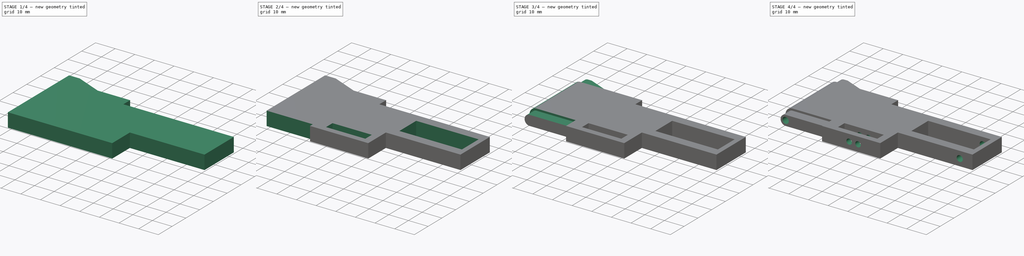
[diagram: build sequence overview — one tinted view per stage of 4, left to right]
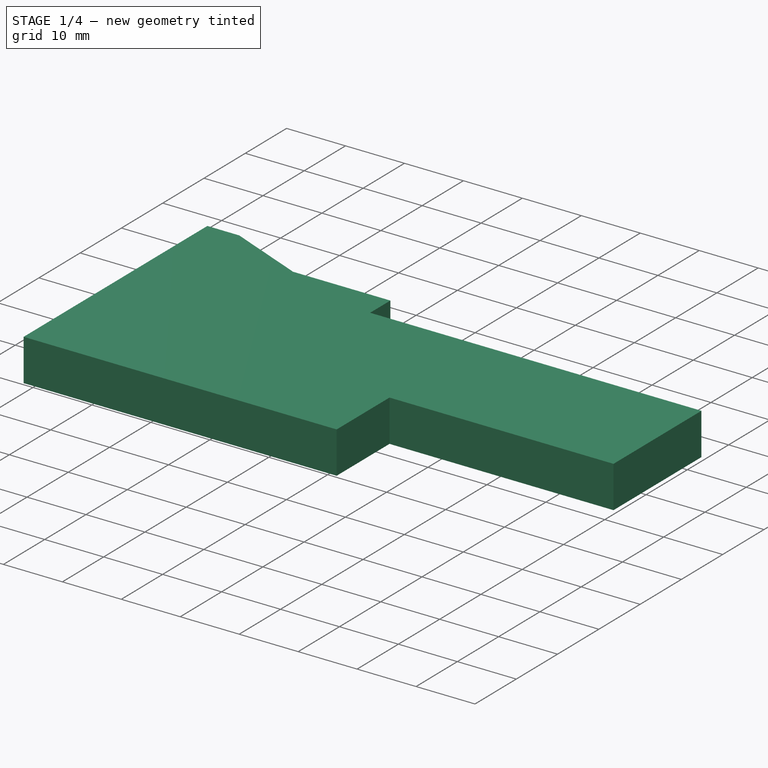
[diagram: stage 1 of 4 — iso view after this stage's code; geometry added in this stage tinted green]
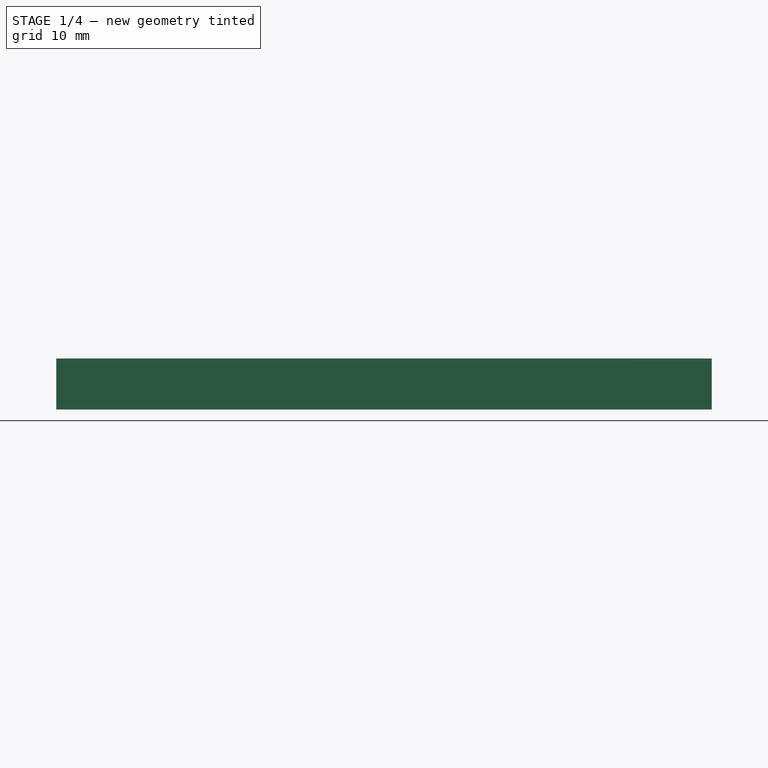
[diagram: stage 1 of 4 — front view after this stage's code; geometry added in this stage tinted green]
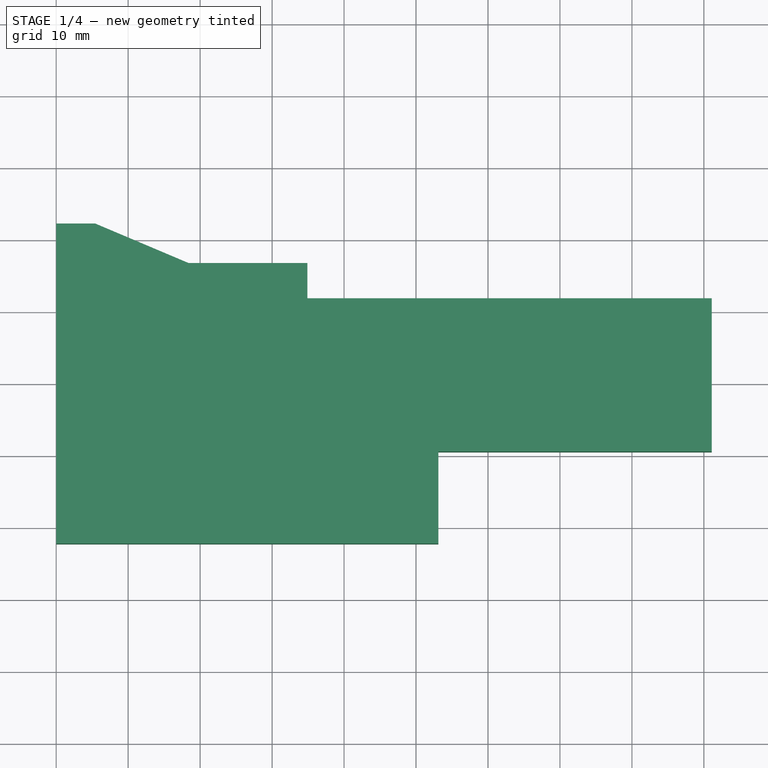
[diagram: stage 1 of 4 — top view after this stage's code; geometry added in this stage tinted green]
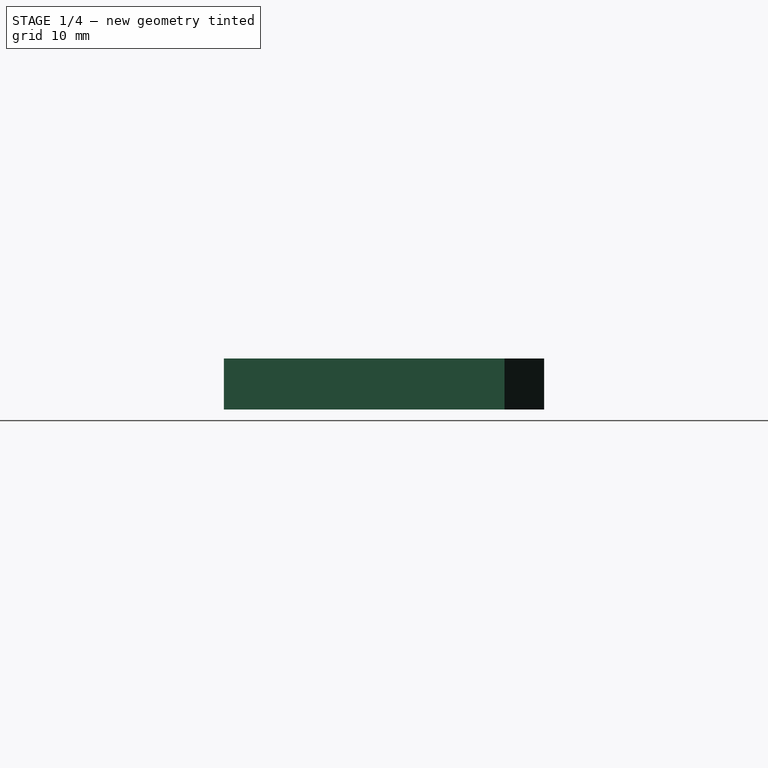
[diagram: stage 1 of 4 — right view after this stage's code; geometry added in this stage tinted green]
FCSTD DOCUMENT  (FreeCAD 0.15R4671 (Git))
Label: querlenker
License: CC-BY 3.0
LicenseURL: http://creativecommons.org/licenses/by/3.0/
objects: Sketcher::SketchObject×12, PartDesign::Pocket×11, PartDesign::Pad×1
note: 36 computed .brp shape members not serialized (recipe doc carries the construction recipe); baked Part::Feature solids carry a one-line shape summary decoded from their .brp

FEATURE [Sketcher::SketchObject] Sketch  label="basisform"
  sketch-geometry (4):
    g0: LineSegment StartX=0 StartY=22.25 StartZ=0 EndX=91.1 EndY=22.25 EndZ=0
    g1: LineSegment StartX=91.1 StartY=22.25 StartZ=0 EndX=91.1 EndY=-22.25 EndZ=0
    g2: LineSegment StartX=91.1 StartY=-22.25 StartZ=0 EndX=0 EndY=-22.25 EndZ=0
    g3: LineSegment StartX=0 StartY=-22.25 StartZ=0 EndX=0 EndY=22.25 EndZ=0
  constraints (11):
    c: Coincident(g0,g1)
    c: Coincident(g1,g2)
    c: Coincident(g2,g3)
    c: Coincident(g3,g0)
    c: Horizontal(g0)
    c: Horizontal(g2)
    c: Vertical(g1)
    c: Vertical(g3)
    c: DistanceX(g0) = 91.1
    c: DistanceY(g3) = 44.5
    c: Symmetric(g3,g3,g-1)
FEATURE [PartDesign::Pad] Pad
  Length = 7.1
  Length2 = 100
  Midplane = true
  Sketch = -> Sketch
  Type = 0
FEATURE [Sketcher::SketchObject] Sketch001
  ExternalGeometry = -> [Pad]
  Placement = pos=(0,0,3.55) rot=(0,0,1;0rad)
  Support = -> Pad [Face6]
  sketch-geometry (6):
    g0: LineSegment StartX=5.4 StartY=22.25 StartZ=0 EndX=91.1 EndY=22.25 EndZ=0
    g1: LineSegment StartX=91.1 StartY=22.25 StartZ=0 EndX=91.1 EndY=11.85 EndZ=0
    g2: LineSegment StartX=91.1 StartY=11.85 StartZ=0 EndX=34.9 EndY=11.85 EndZ=0
    g3: LineSegment StartX=34.9 StartY=16.75 StartZ=0 EndX=18.4 EndY=16.75 EndZ=0
    g4: LineSegment StartX=18.4 StartY=16.75 StartZ=0 EndX=5.4 EndY=22.25 EndZ=0
    g5: LineSegment StartX=34.9 StartY=11.85 StartZ=0 EndX=34.9 EndY=16.75 EndZ=0
  constraints (16):
    c: Coincident(g0,g1)
    c: Perpendicular(g1,g2)
    c: Coincident(g3,g4)
    c: Coincident(g4,g0)
    c: Horizontal(g0)
    c: Horizontal(g2)
    c: DistanceY(g1) = -10.4
    c: DistanceX(g2) = -56.2
    c: Coincident(g5,g3)
    c: Coincident(g2,g5)
    c: Vertical(g5)
    c: DistanceY(g5) = 4.9
    c: Horizontal(g3)
    c: DistanceX(g3) = -16.5
    c: DistanceX(g0) = 85.7
    c: Coincident(g0,g-3)
FEATURE [PartDesign::Pocket] Pocket
  Length = 5
  Sketch = -> Sketch001
  Type = 1
FEATURE [Sketcher::SketchObject] Sketch002
  ExternalGeometry = -> [Pocket]
  Placement = pos=(0,0,3.55) rot=(0,0,1;0rad)
  Support = -> Pocket [Face4]
  sketch-geometry (4):
    g0: LineSegment StartX=53.1 StartY=-9.45 StartZ=0 EndX=91.1 EndY=-9.45 EndZ=0
    g1: LineSegment StartX=91.1 StartY=-9.45 StartZ=0 EndX=91.1 EndY=-22.25 EndZ=0
    g2: LineSegment StartX=91.1 StartY=-22.25 StartZ=0 EndX=53.1 EndY=-22.25 EndZ=0
    g3: LineSegment StartX=53.1 StartY=-22.25 StartZ=0 EndX=53.1 EndY=-9.45 EndZ=0
  constraints (11):
    c: Coincident(g0,g1)
    c: Coincident(g1,g2)
    c: Coincident(g2,g3)
    c: Coincident(g3,g0)
    c: Horizontal(g0)
    c: Horizontal(g2)
    c: Vertical(g1)
    c: Vertical(g3)
    c: DistanceX(g2) = -38
    c: DistanceY(g1) = -12.8
    c: Coincident(g1,g-3)
FEATURE [PartDesign::Pocket] Pocket001
  Length = 5
  Sketch = -> Sketch002
  Type = 1
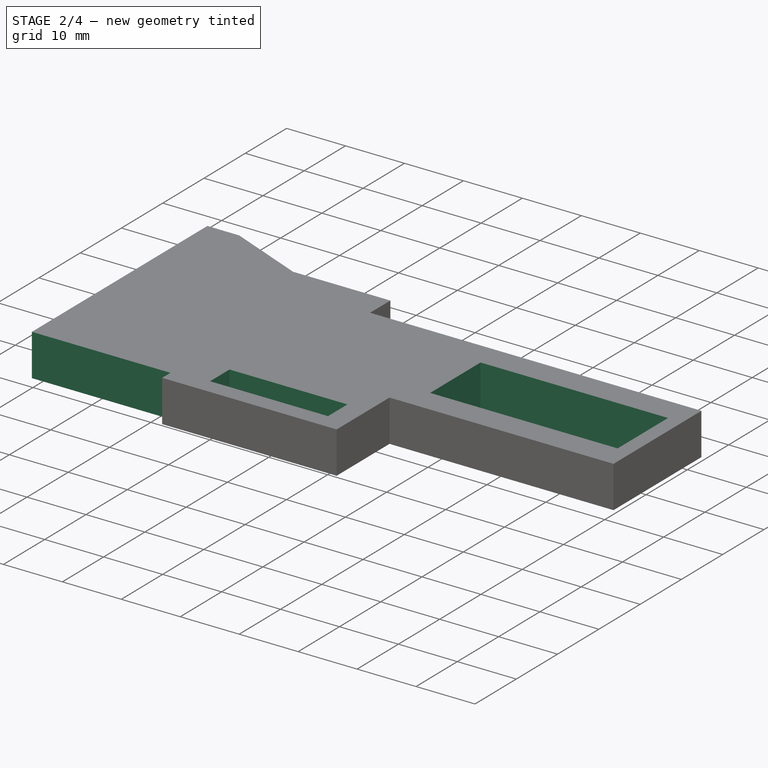
[diagram: stage 2 of 4 — iso view after this stage's code; geometry added in this stage tinted green]
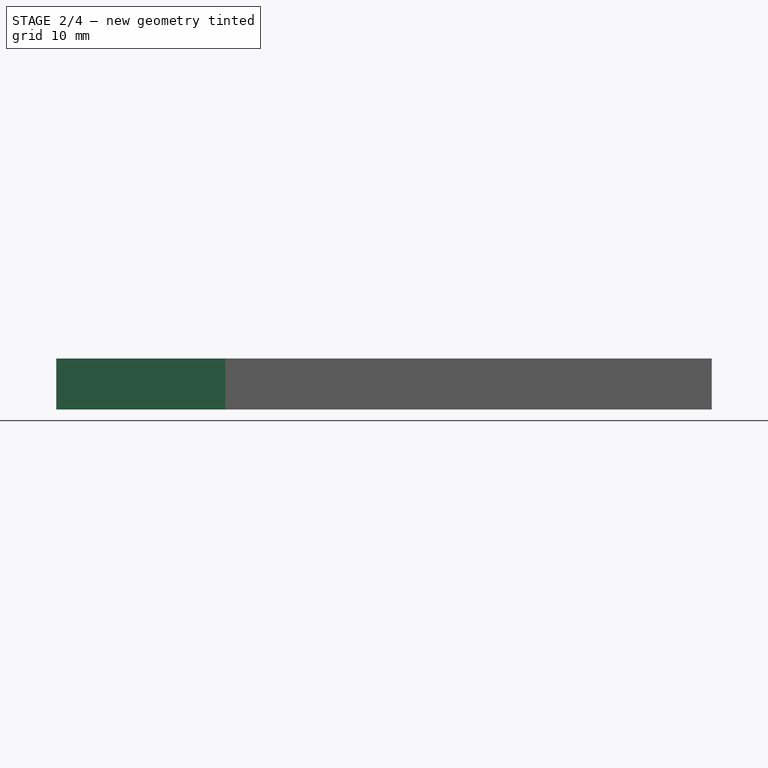
[diagram: stage 2 of 4 — front view after this stage's code; geometry added in this stage tinted green]
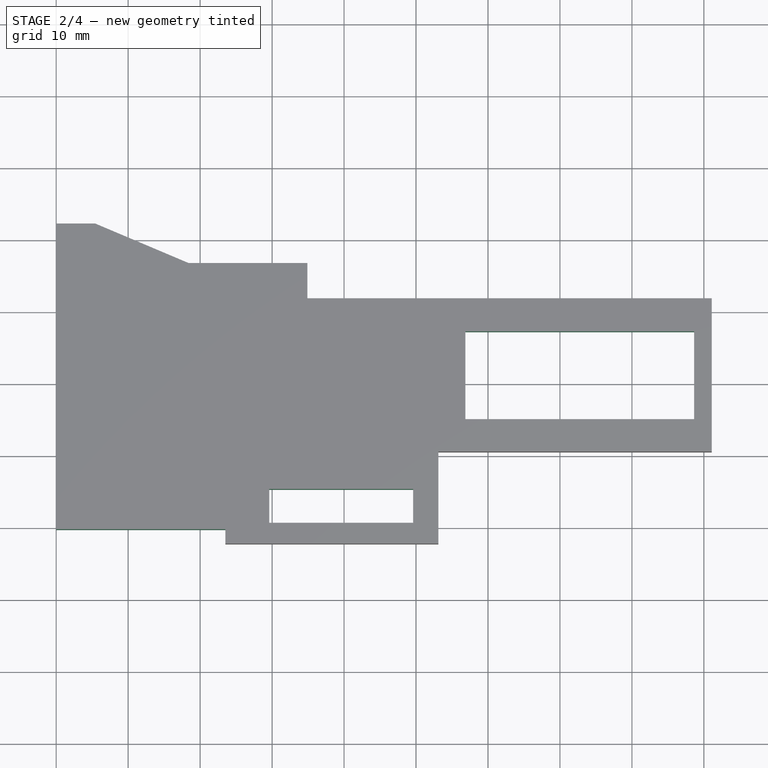
[diagram: stage 2 of 4 — top view after this stage's code; geometry added in this stage tinted green]
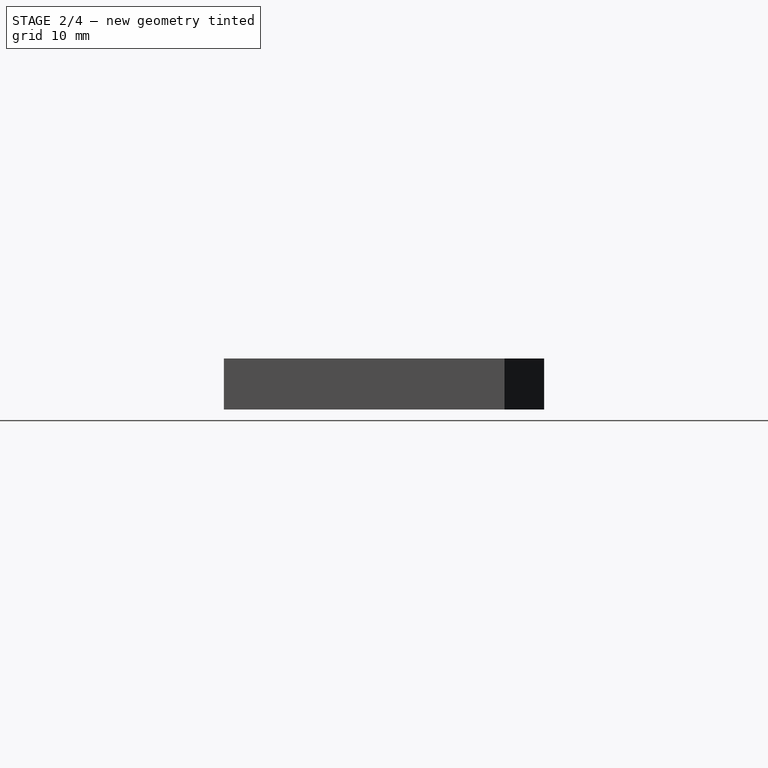
[diagram: stage 2 of 4 — right view after this stage's code; geometry added in this stage tinted green]
FEATURE [Sketcher::SketchObject] Sketch003
  ExternalGeometry = -> [Pocket001]
  Placement = pos=(0,0,3.55) rot=(0,0,1;0rad)
  Support = -> Pocket001 [Face4]
  sketch-geometry (4):
    g0: LineSegment StartX=0 StartY=-20.25 StartZ=0 EndX=23.5 EndY=-20.25 EndZ=0
    g1: LineSegment StartX=23.5 StartY=-20.25 StartZ=0 EndX=23.5 EndY=-22.25 EndZ=0
    g2: LineSegment StartX=23.5 StartY=-22.25 StartZ=0 EndX=0 EndY=-22.25 EndZ=0
    g3: LineSegment StartX=0 StartY=-22.25 StartZ=0 EndX=0 EndY=-20.25 EndZ=0
  constraints (11):
    c: Coincident(g0,g1)
    c: Coincident(g1,g2)
    c: Coincident(g2,g3)
    c: Coincident(g3,g0)
    c: Horizontal(g0)
    c: Horizontal(g2)
    c: Vertical(g1)
    c: Vertical(g3)
    c: DistanceX(g0) = 23.5
    c: DistanceY(g3) = 2
    c: Coincident(g2,g-3)
FEATURE [PartDesign::Pocket] Pocket002
  Length = 5
  Sketch = -> Sketch003
  Type = 1
FEATURE [Sketcher::SketchObject] Sketch004
  ExternalGeometry = -> [Pocket002]
  Placement = pos=(0,0,3.55) rot=(0,0,1;0rad)
  Support = -> Pocket002 [Face4]
  sketch-geometry (4):
    g0: LineSegment StartX=56.85 StartY=7.25 StartZ=0 EndX=88.65 EndY=7.25 EndZ=0
    g1: LineSegment StartX=88.65 StartY=7.25 StartZ=0 EndX=88.65 EndY=-4.95 EndZ=0
    g2: LineSegment StartX=88.65 StartY=-4.95 StartZ=0 EndX=56.85 EndY=-4.95 EndZ=0
    g3: LineSegment StartX=56.85 StartY=-4.95 StartZ=0 EndX=56.85 EndY=7.25 EndZ=0
  constraints (13):
    c: Coincident(g1,g2)
    c: Coincident(g2,g3)
    c: Coincident(g3,g0)
    c: Horizontal(g2)
    c: Vertical(g3)
    c: DistanceY(g3) = 12.2
    c: DistanceX(g0) = 31.8
    c: Vertical(g1)
    c: Horizontal(g0)
    c: DistanceY(g-3,g0) = -4.6
    c: DistanceX(g-3,g0) = -2.45
    c: Equal(g0,g2)
    c: Equal(g1,g3)
FEATURE [PartDesign::Pocket] Pocket003
  Length = 5
  Sketch = -> Sketch004
  Type = 1
FEATURE [Sketcher::SketchObject] Sketch005
  ExternalGeometry = -> [Pocket003]
  Placement = pos=(0,0,3.55) rot=(0,0,1;0rad)
  Support = -> Pocket003 [Face4]
  sketch-geometry (4):
    g0: LineSegment StartX=29.6 StartY=-14.65 StartZ=0 EndX=49.6 EndY=-14.65 EndZ=0
    g1: LineSegment StartX=49.6 StartY=-14.65 StartZ=0 EndX=49.6 EndY=-19.35 EndZ=0
    g2: LineSegment StartX=49.6 StartY=-19.35 StartZ=0 EndX=29.6 EndY=-19.35 EndZ=0
    g3: LineSegment StartX=29.6 StartY=-19.35 StartZ=0 EndX=29.6 EndY=-14.65 EndZ=0
  constraints (13):
    c: Coincident(g0,g1)
    c: Coincident(g2,g3)
    c: Coincident(g3,g0)
    c: Horizontal(g0)
    c: Horizontal(g2)
    c: Vertical(g1)
    c: Vertical(g3)
    c: DistanceX(g0) = 20
    c: DistanceX(g-3,g1) = -3.5
    c: DistanceY(g1,g-3) = -2.9
    c: DistanceY(g1) = -4.7
    c: Equal(g1,g3)
    c: Equal(g0,g2)
FEATURE [PartDesign::Pocket] Pocket004
  Length = 5
  Sketch = -> Sketch005
  Type = 1
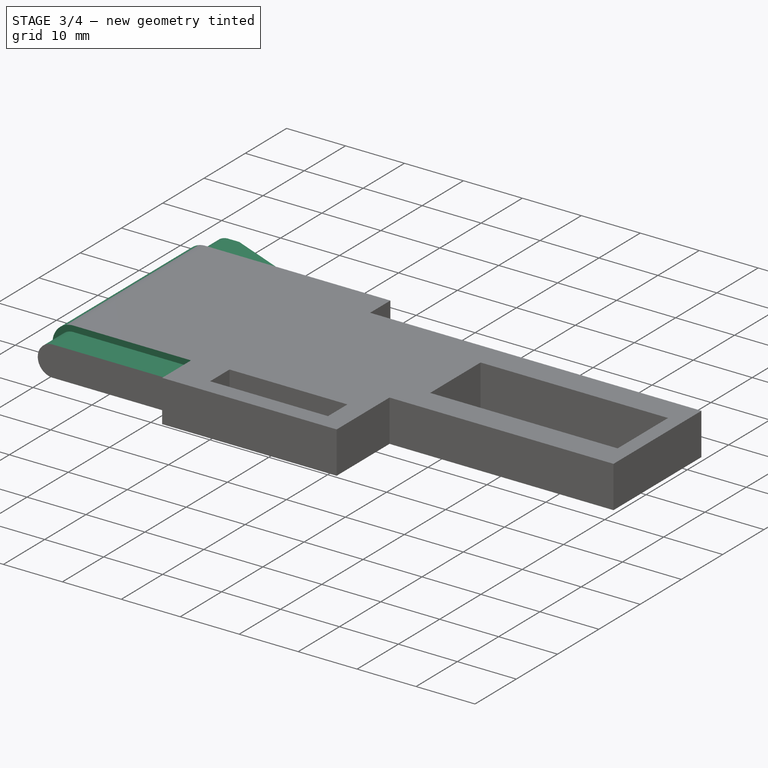
[diagram: stage 3 of 4 — iso view after this stage's code; geometry added in this stage tinted green]
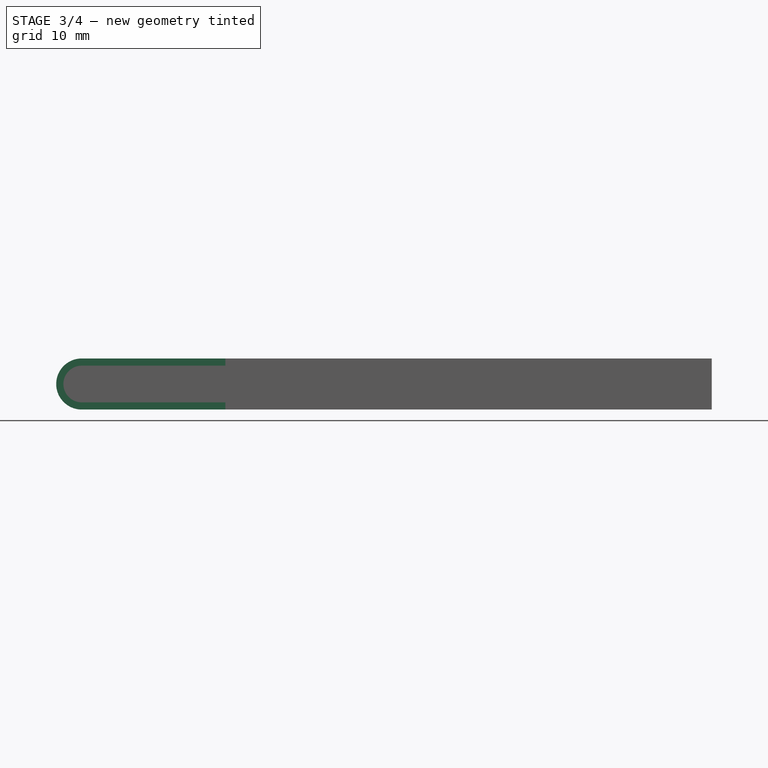
[diagram: stage 3 of 4 — front view after this stage's code; geometry added in this stage tinted green]
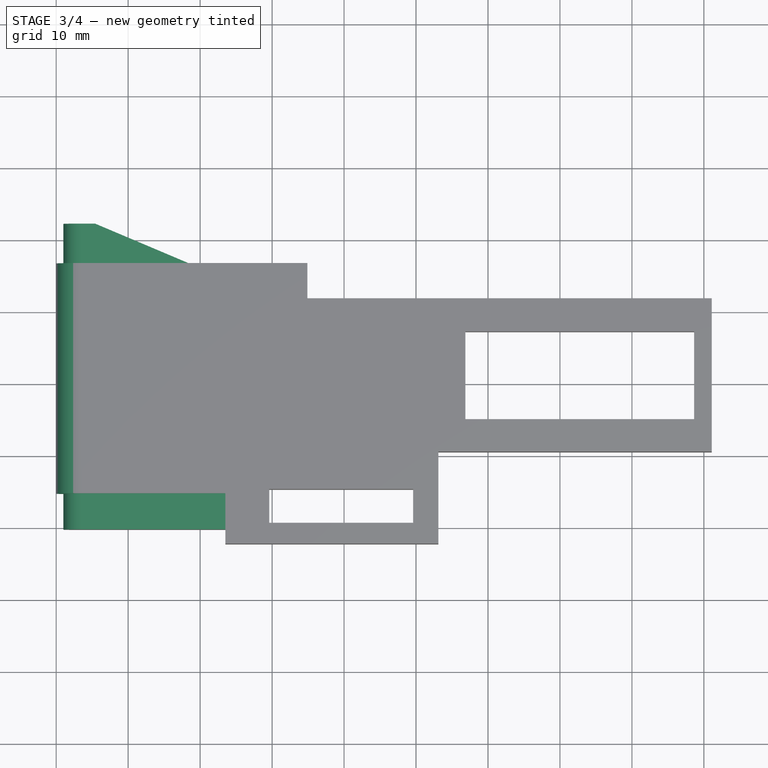
[diagram: stage 3 of 4 — top view after this stage's code; geometry added in this stage tinted green]
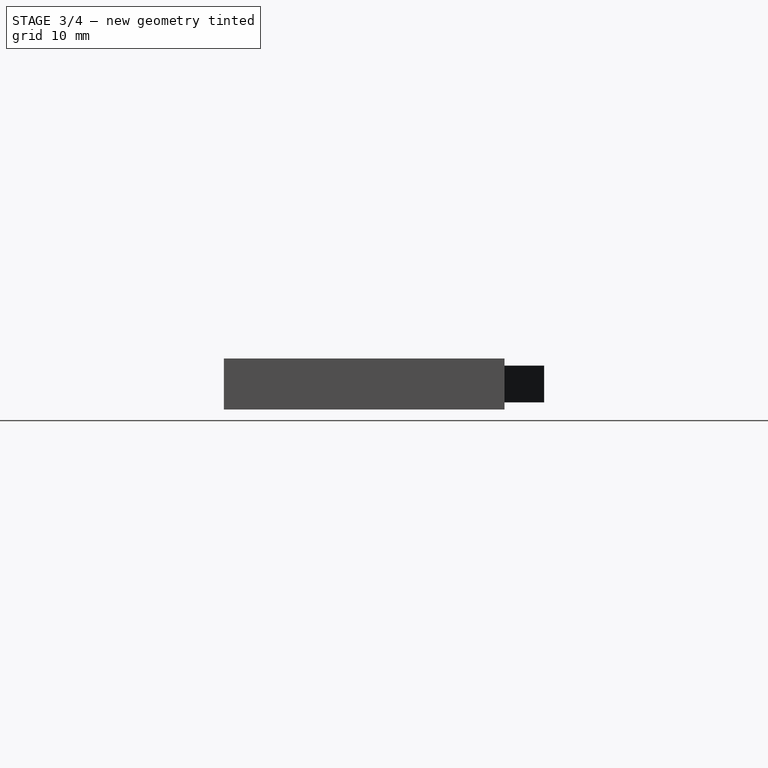
[diagram: stage 3 of 4 — right view after this stage's code; geometry added in this stage tinted green]
FEATURE [Sketcher::SketchObject] Sketch006
  ExternalGeometry = -> [Pocket004]
  Placement = pos=(0,-20.25,0) rot=(1,0,0;1.5708rad)
  Support = -> Pocket004 [Face6]
  sketch-geometry (4):
    g0: LineSegment StartX=3.55 StartY=3.55 StartZ=0 EndX=-1.45 EndY=3.55 EndZ=0
    g1: LineSegment StartX=-1.45 StartY=3.55 StartZ=0 EndX=-1.45 EndY=-3.55 EndZ=0
    g2: LineSegment StartX=-1.45 StartY=-3.55 StartZ=0 EndX=3.55 EndY=-3.55 EndZ=0
    g3: ArcOfCircle CenterX=3.55 CenterY=0 CenterZ=0 NormalX=0 NormalY=0 NormalZ=1 Radius=3.55 StartAngle=1.5708 EndAngle=4.71239
  constraints (13):
    c: Coincident(g1,g2)
    c: Horizontal(g0)
    c: Horizontal(g2)
    c: Vertical(g1)
    c: Coincident(g0,g1)
    c: Equal(g0,g2)
    c: Symmetric(g3,g3,g3)
    c: Coincident(g0,g3)
    c: Coincident(g2,g3)
    c: DistanceY(g1) = -7.1
    c: PointOnObject(g-1,g3)
    c: PointOnObject(g-3,g0)
    c: DistanceX(g0) = -5
FEATURE [PartDesign::Pocket] Pocket005
  Length = 5
  Sketch = -> Sketch006
  Type = 1
FEATURE [Sketcher::SketchObject] Sketch007
  ExternalGeometry = -> [Pocket005]
  Placement = pos=(0,-20.25,0) rot=(1,0,0;1.5708rad)
  Support = -> Pocket005 [Face15]
  sketch-geometry (8):
    g0: LineSegment StartX=0 StartY=3.55 StartZ=0 EndX=23.5 EndY=3.55 EndZ=0
    g1: LineSegment StartX=23.5 StartY=-3.55 StartZ=0 EndX=0 EndY=-3.55 EndZ=0
    g2: LineSegment StartX=0 StartY=-3.55 StartZ=0 EndX=0 EndY=3.55 EndZ=0
    g3: LineSegment StartX=3.55 StartY=-2.55 StartZ=0 EndX=23.5 EndY=-2.55 EndZ=0
    g4: LineSegment StartX=23.5 StartY=2.55 StartZ=0 EndX=3.55 EndY=2.55 EndZ=0
    g5: ArcOfCircle CenterX=3.55 CenterY=0 CenterZ=0 NormalX=0 NormalY=0 NormalZ=1 Radius=2.55 StartAngle=1.5708 EndAngle=4.71239
    g6: LineSegment StartX=23.5 StartY=3.55 StartZ=0 EndX=23.5 EndY=2.55 EndZ=0
    g7: LineSegment StartX=23.5 StartY=-2.55 StartZ=0 EndX=23.5 EndY=-3.55 EndZ=0
  constraints (26):
    c: Coincident(g1,g2)
    c: Coincident(g2,g0)
    c: Horizontal(g0)
    c: Horizontal(g1)
    c: Vertical(g2)
    c: Horizontal(g3)
    c: Horizontal(g4)
    c: Symmetric(g5,g5,g5)
    c: Coincident(g3,g5)
    c: Coincident(g4,g5)
    c: Vertical(g6)
    c: Vertical(g7)
    c: DistanceY(g2) = 7.1
    c: DistanceY(g4,g3) = -5.1
    c: Equal(g4,g3)
    c: Equal(g1,g0)
    c: Equal(g7,g6)
    c: DistanceY(g7) = -1
    c: Coincident(g7,g1)
    c: Coincident(g3,g7)
    c: Coincident(g6,g0)
    c: Coincident(g6,g4)
    c: PointOnObject(g-1,g2)
    c: PointOnObject(g5,g-1)
    c: Coincident(g0,g-3)
    c: DistanceX(g-1,g5) = 3.55
FEATURE [PartDesign::Pocket] Pocket006
  Length = 5
  Sketch = -> Sketch007
  Type = 0
FEATURE [Sketcher::SketchObject] Sketch008
  ExternalGeometry = -> [Pocket006]
  Placement = pos=(0,22.25,0) rot=(0,0.707107,0.707107;3.14159rad)
  Support = -> Pocket006 [Face1]
  sketch-geometry (8):
    g0: LineSegment StartX=-18.4 StartY=3.55 StartZ=0 EndX=0 EndY=3.55 EndZ=0
    g1: LineSegment StartX=0 StartY=3.55 StartZ=0 EndX=0 EndY=-3.55 EndZ=0
    g2: LineSegment StartX=0 StartY=-3.55 StartZ=0 EndX=-18.4 EndY=-3.55 EndZ=0
    g3: LineSegment StartX=-18.4 StartY=2.55 StartZ=0 EndX=-3.55 EndY=2.55 EndZ=0
    g4: LineSegment StartX=-3.55 StartY=-2.55 StartZ=0 EndX=-18.4 EndY=-2.55 EndZ=0
    g5: ArcOfCircle CenterX=-3.55 CenterY=0 CenterZ=0 NormalX=0 NormalY=0 NormalZ=1 Radius=2.55 StartAngle=4.71239 EndAngle=7.85398
    g6: LineSegment StartX=-18.4 StartY=3.55 StartZ=0 EndX=-18.4 EndY=2.55 EndZ=0
    g7: LineSegment StartX=-18.4 StartY=-2.55 StartZ=0 EndX=-18.4 EndY=-3.55 EndZ=0
  constraints (24):
    c: Coincident(g0,g1)
    c: Coincident(g1,g2)
    c: Horizontal(g0)
    c: Horizontal(g2)
    c: Vertical(g1)
    c: Horizontal(g3)
    c: Horizontal(g4)
    c: Vertical(g6)
    c: Vertical(g7)
    c: Equal(g6,g7)
    c: DistanceY(g6) = -1
    c: Symmetric(g5,g5,g5)
    c: Coincident(g3,g5)
    c: Coincident(g4,g5)
    c: Equal(g3,g4)
    c: Coincident(g0,g6)
    c: Coincident(g2,g7)
    c: Equal(g0,g2)
    c: Coincident(g3,g6)
    c: Coincident(g4,g7)
    c: DistanceY(g1) = -7.1
    c: Symmetric(g0,g1,g-1)
    c: Coincident(g0,g-3)
    c: DistanceX(g-1,g5) = -3.55
FEATURE [PartDesign::Pocket] Pocket007
  Length = 5.5
  Sketch = -> Sketch008
  Type = 0
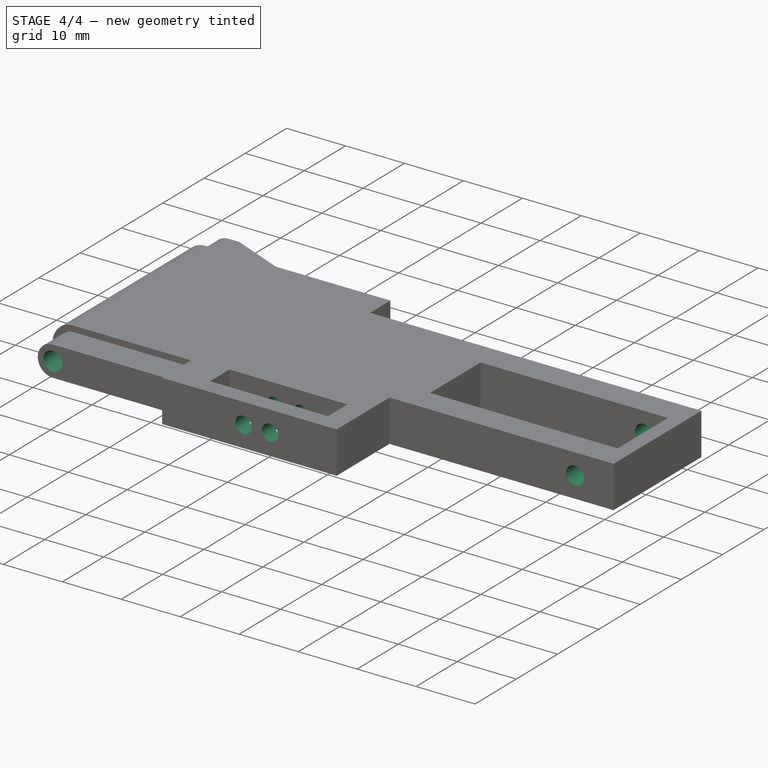
[diagram: stage 4 of 4 — iso view after this stage's code; geometry added in this stage tinted green]
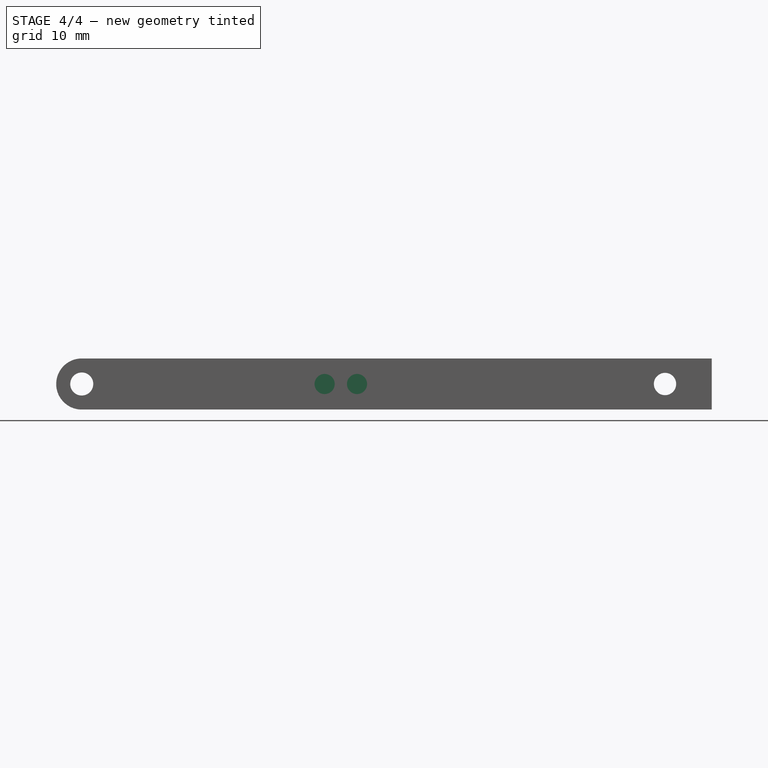
[diagram: stage 4 of 4 — front view after this stage's code; geometry added in this stage tinted green]
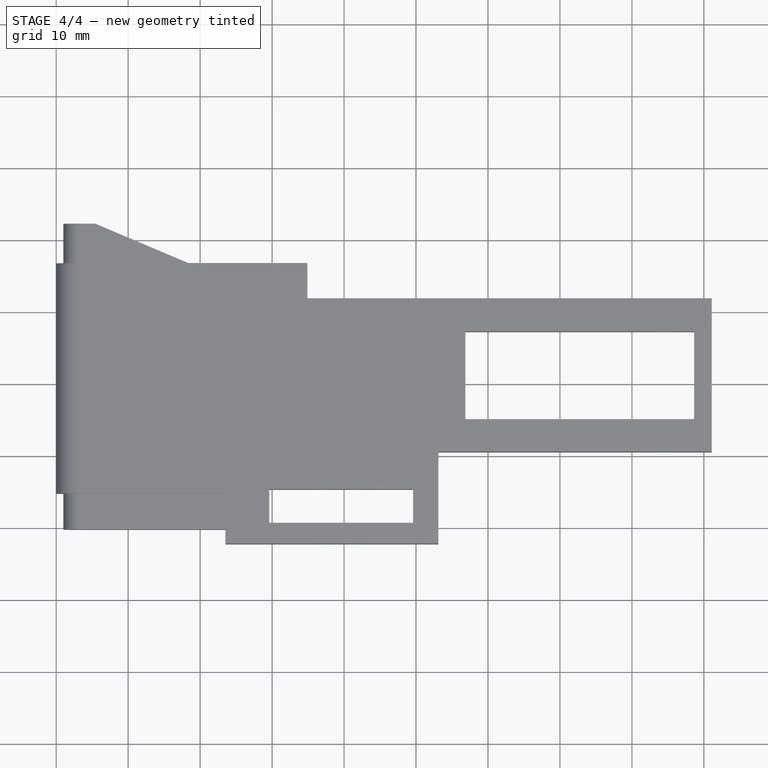
[diagram: stage 4 of 4 — top view after this stage's code; geometry added in this stage tinted green]
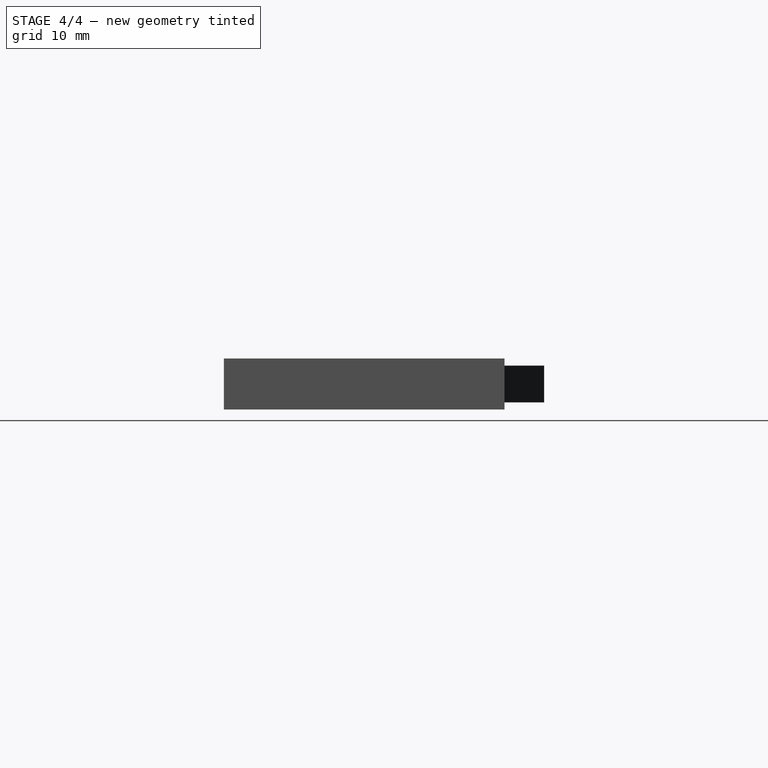
[diagram: stage 4 of 4 — right view after this stage's code; geometry added in this stage tinted green]
FEATURE [Sketcher::SketchObject] Sketch009
  Placement = pos=(0,-20.25,0) rot=(1,0,0;1.5708rad)
  Support = -> Pocket007 [Face30]
  sketch-geometry (1):
    g0: Circle CenterX=3.55 CenterY=0 CenterZ=0 NormalX=0 NormalY=0 NormalZ=1 Radius=1.6
  constraints (3):
    c: Radius(g0) = 1.6
    c: PointOnObject(g0,g-1)
    c: DistanceX(g-1,g0) = 3.55
FEATURE [PartDesign::Pocket] Pocket008
  Length = 5
  Sketch = -> Sketch009
  Type = 1
FEATURE [Sketcher::SketchObject] Sketch010
  Placement = pos=(0,-22.25,0) rot=(1,0,0;1.5708rad)
  Support = -> Pocket008 [Face23]
  sketch-geometry (1):
    g0: Circle CenterX=84.6 CenterY=0 CenterZ=0 NormalX=0 NormalY=0 NormalZ=1 Radius=1.55
  constraints (3):
    c: Radius(g0) = 1.55
    c: PointOnObject(g0,g-1)
    c: DistanceX(g-1,g0) = 84.6
FEATURE [PartDesign::Pocket] Pocket009
  Length = 5
  Sketch = -> Sketch010
  Type = 1
FEATURE [Sketcher::SketchObject] Sketch011
  Placement = pos=(0,-22.25,0) rot=(1,0,0;1.5708rad)
  Support = -> Pocket009 [Face23]
  sketch-geometry (2):
    g0: Circle CenterX=41.8 CenterY=0 CenterZ=0 NormalX=0 NormalY=0 NormalZ=1 Radius=1.4
    g1: Circle CenterX=37.3 CenterY=0 CenterZ=0 NormalX=0 NormalY=0 NormalZ=1 Radius=1.4
  constraints (6):
    c: Radius(g0) = 1.4
    c: PointOnObject(g0,g-1)
    c: Radius(g1) = 1.4
    c: PointOnObject(g1,g-1)
    c: DistanceX(g0,g1) = -4.5
    c: DistanceX(g-1,g1) = 37.3
FEATURE [PartDesign::Pocket] Pocket010
  Length = 16
  Sketch = -> Sketch011
  Type = 0
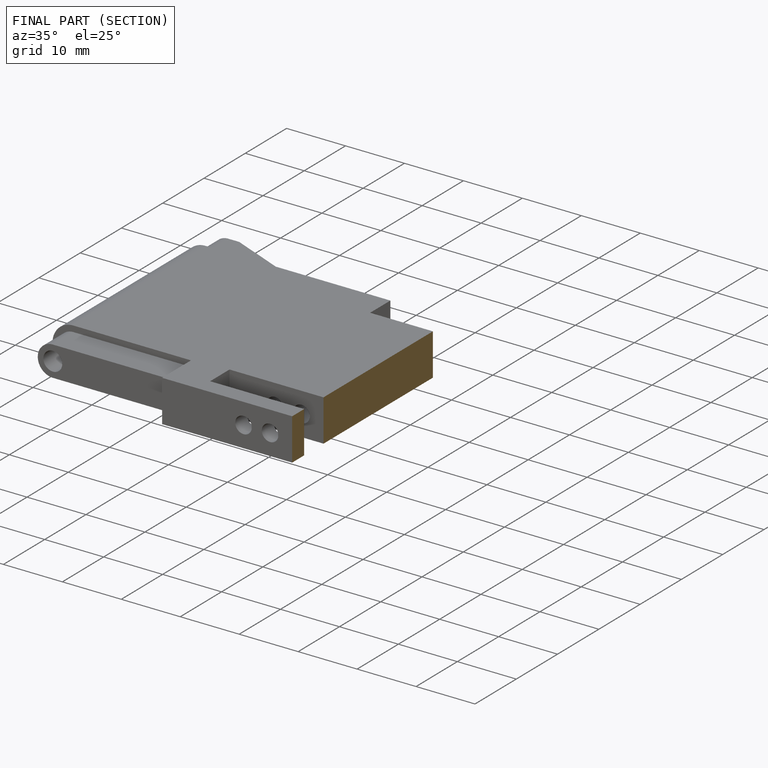
[diagram: finished part — half-section view (interior)]
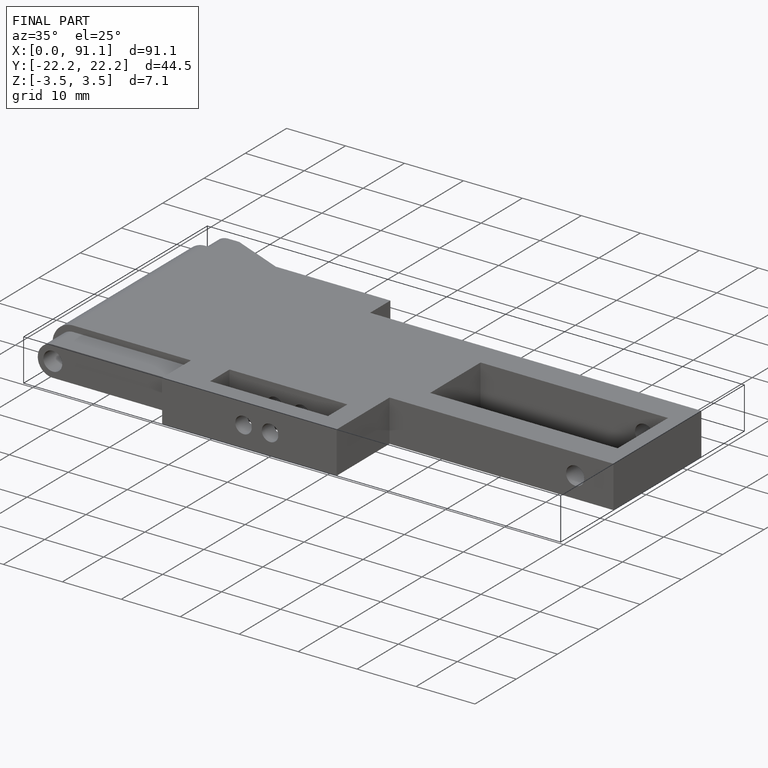
[diagram: finished part — iso view with bounding-box wireframe]
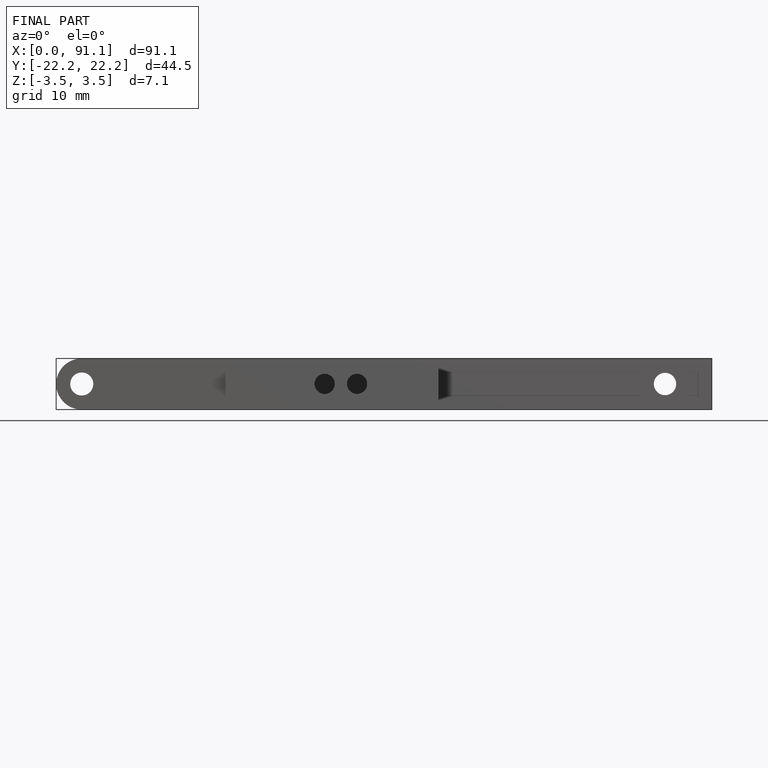
[diagram: finished part — front view with bounding-box wireframe]
